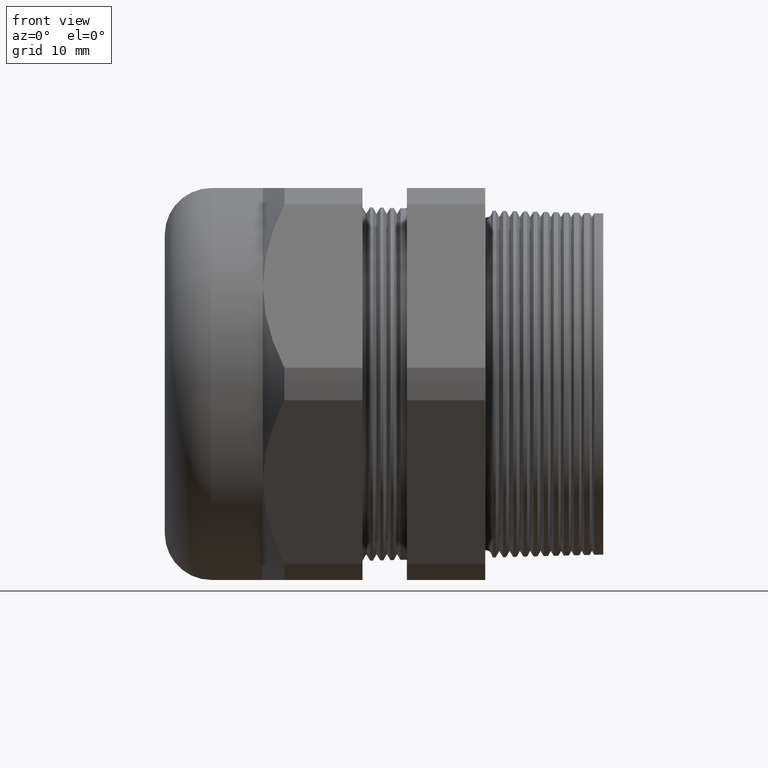
[diagram: clean part render]
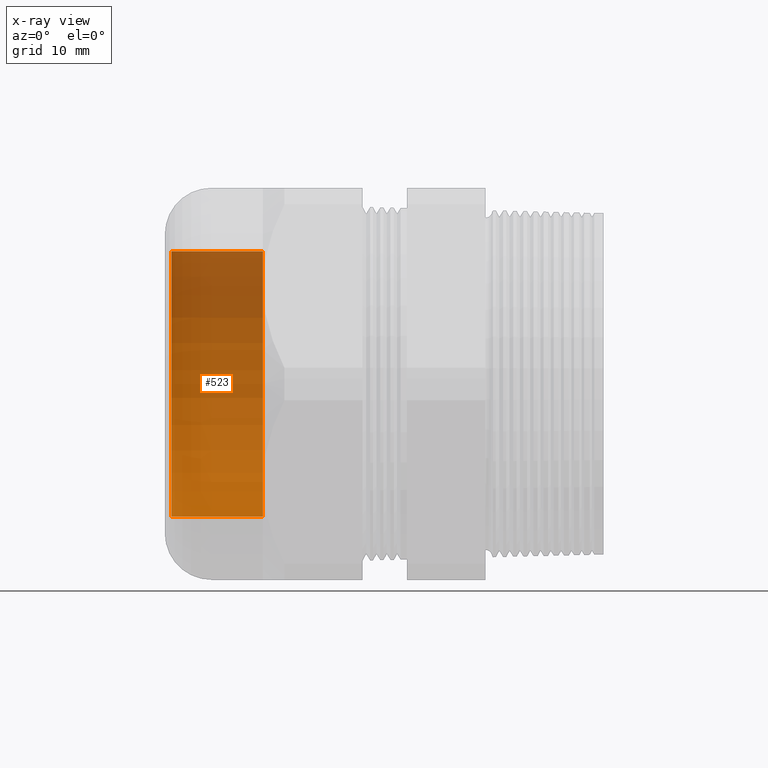
[diagram: x-ray — body ghosted, one internal face saturated and labeled with its STEP entity id]
A machine part, front view, then the same camera in x-ray: the body is ghosted and one INTERNAL B-rep face — a face not visible from any outside direction — is saturated and labeled: STEP entity #523.
In plain terms, the highlighted cylindrical surface (partial cylindrical patch) has radius 20.2882 mm, axis along (1, 0, 0).
Its self-contained STEP definition (entity closure, byte-faithful):
#418 = VERTEX_POINT ( 'NONE', #1289 ) ;
#420 = EDGE_CURVE ( 'NONE', #421, #418, #1288, .T. ) ;
#421 = VERTEX_POINT ( 'NONE', #1347 ) ;
#422 = EDGE_LOOP ( 'NONE', ( #524, #525, #528, #531 ) ) ;
#523 = ADVANCED_FACE ( 'NONE', ( #1493 ), #1479, .T. ) ;
#524 = ORIENTED_EDGE ( 'NONE', *, *, #420, .T. ) ;
#525 = ORIENTED_EDGE ( 'NONE', *, *, #526, .T. ) ;
#526 = EDGE_CURVE ( 'NONE', #418, #527, #1542, .T. ) ;
#527 = VERTEX_POINT ( 'NONE', #1538 ) ;
#528 = ORIENTED_EDGE ( 'NONE', *, *, #529, .F. ) ;
#529 = EDGE_CURVE ( 'NONE', #530, #527, #1537, .T. ) ;
#530 = VERTEX_POINT ( 'NONE', #1532 ) ;
#531 = ORIENTED_EDGE ( 'NONE', *, *, #532, .F. ) ;
#532 = EDGE_CURVE ( 'NONE', #421, #530, #1531, .T. ) ;
#740 = AXIS2_PLACEMENT_3D ( 'NONE', #1017, #1349, #1348 ) ;
#1017 = CARTESIAN_POINT ( 'NONE',  ( -2.200999999999999600, 0.0000000000000000000, 0.0000000000000000000 ) ) ;
#1288 = CIRCLE ( 'NONE', #740, 0.7987499999999997400 ) ;
#1289 = CARTESIAN_POINT ( 'NONE',  ( -2.200999999999999600, 9.781866308189481500E-017, 0.7987499999999997400 ) ) ;
#1347 = CARTESIAN_POINT ( 'NONE',  ( -2.200999999999999600, 0.0000000000000000000, -0.7987499999999997400 ) ) ;
#1348 = DIRECTION ( 'NONE',  ( 0.0000000000000000000, 0.0000000000000000000, -1.000000000000000000 ) ) ;
#1349 = DIRECTION ( 'NONE',  ( 1.000000000000000000, 0.0000000000000000000, 0.0000000000000000000 ) ) ;
#1476 = DIRECTION ( 'NONE',  ( 0.0000000000000000000, 0.0000000000000000000, -1.000000000000000000 ) ) ;
#1477 = DIRECTION ( 'NONE',  ( 1.000000000000000000, 0.0000000000000000000, 0.0000000000000000000 ) ) ;
#1478 = AXIS2_PLACEMENT_3D ( 'NONE', #1480, #1477, #1476 ) ;
#1479 = CYLINDRICAL_SURFACE ( 'NONE', #1478, 0.7987499999999997400 ) ;
#1480 = CARTESIAN_POINT ( 'NONE',  ( 0.0000000000000000000, 0.0000000000000000000, 0.0000000000000000000 ) ) ;
#1493 = FACE_OUTER_BOUND ( 'NONE', #422, .T. ) ;
#1528 = DIRECTION ( 'NONE',  ( 1.000000000000000000, 0.0000000000000000000, 0.0000000000000000000 ) ) ;
#1529 = VECTOR ( 'NONE', #1528, 39.37007874015748100 ) ;
#1530 = CARTESIAN_POINT ( 'NONE',  ( 0.0000000000000000000, 0.0000000000000000000, -0.7987499999999997400 ) ) ;
#1531 = LINE ( 'NONE', #1530, #1529 ) ;
#1532 = CARTESIAN_POINT ( 'NONE',  ( -1.649449999999999600, 0.0000000000000000000, -0.7987499999999997400 ) ) ;
#1533 = DIRECTION ( 'NONE',  ( 0.0000000000000000000, 0.0000000000000000000, -1.000000000000000000 ) ) ;
#1534 = DIRECTION ( 'NONE',  ( 1.000000000000000000, 0.0000000000000000000, 0.0000000000000000000 ) ) ;
#1535 = CARTESIAN_POINT ( 'NONE',  ( -1.649449999999999600, 0.0000000000000000000, 0.0000000000000000000 ) ) ;
#1536 = AXIS2_PLACEMENT_3D ( 'NONE', #1535, #1534, #1533 ) ;
#1537 = CIRCLE ( 'NONE', #1536, 0.7987499999999997400 ) ;
#1538 = CARTESIAN_POINT ( 'NONE',  ( -1.649449999999999600, 9.781866308189481500E-017, 0.7987499999999997400 ) ) ;
#1539 = DIRECTION ( 'NONE',  ( 1.000000000000000000, 0.0000000000000000000, 0.0000000000000000000 ) ) ;
#1540 = VECTOR ( 'NONE', #1539, 39.37007874015748100 ) ;
#1541 = CARTESIAN_POINT ( 'NONE',  ( 0.0000000000000000000, 9.781866308189481500E-017, 0.7987499999999997400 ) ) ;
#1542 = LINE ( 'NONE', #1541, #1540 ) ;